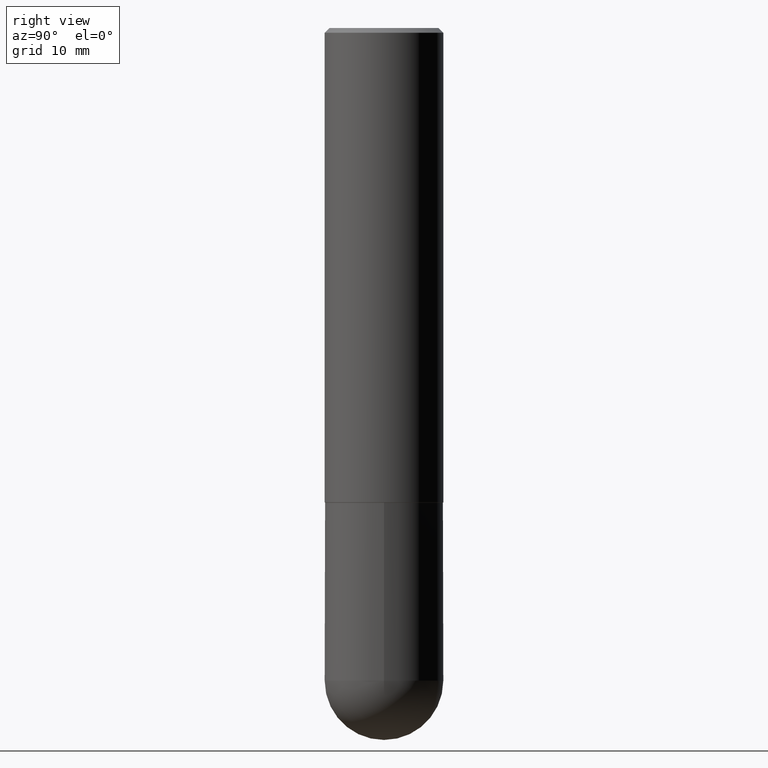
[diagram: clean part render]
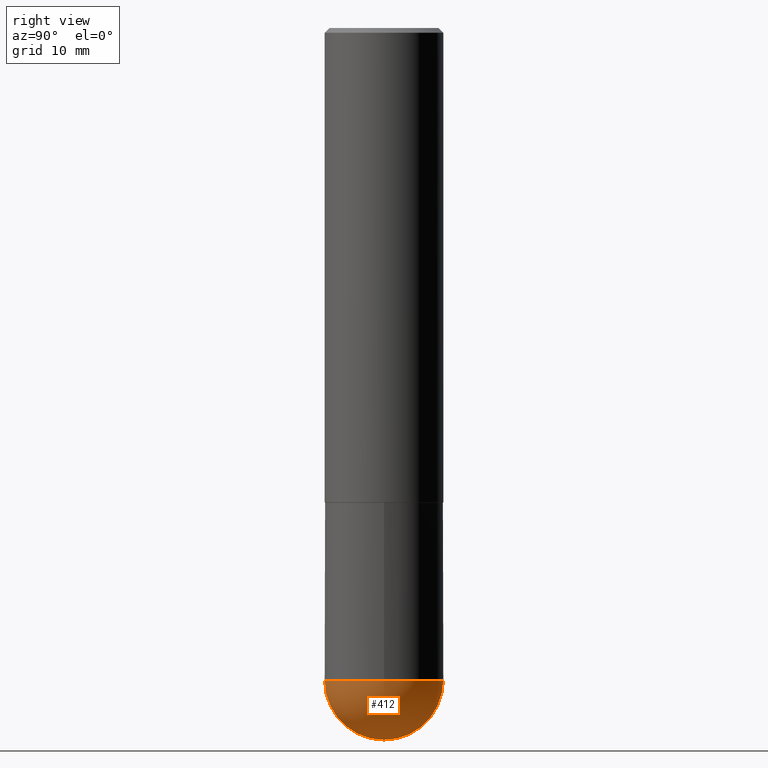
[diagram: same view with one face highlighted and labeled with its STEP entity id]
A machine part, right view. The second image highlights one B-rep face of the part: STEP entity #412.
In plain terms, the highlighted spherical surface has radius 6.35 mm.
Its self-contained STEP definition (entity closure, byte-faithful):
#14 = AXIS2_PLACEMENT_3D ( 'NONE', #236, #357, #362 ) ;
#37 = CARTESIAN_POINT ( 'NONE',  ( -1.776356839400184989E-15, -0.2500000000000098810, -2.749999999999999556 ) ) ;
#60 = CARTESIAN_POINT ( 'NONE',  ( 1.745740669421632745E-15, 0.2499999999999902300, -2.750000000000001332 ) ) ;
#73 = ORIENTED_EDGE ( 'NONE', *, *, #87, .F. ) ;
#82 = AXIS2_PLACEMENT_3D ( 'NONE', #363, #134, #266 ) ;
#87 = EDGE_CURVE ( 'NONE', #389, #170, #205, .T. ) ;
#94 = CARTESIAN_POINT ( 'NONE',  ( 0.2500000000000000000, -1.003800884917404153E-14, -2.750000000000000444 ) ) ;
#114 = ORIENTED_EDGE ( 'NONE', *, *, #386, .T. ) ;
#123 = DIRECTION ( 'NONE',  ( -1.000000000000000000, 7.105427357601001070E-15, -4.926315508542082329E-29 ) ) ;
#133 = CARTESIAN_POINT ( 'NONE',  ( 7.015976219256266741E-29, -1.093331829968014633E-14, -3.000000000000000888 ) ) ;
#134 = DIRECTION ( 'NONE',  ( -2.445468806185136597E-29, 3.491481338843145583E-15, 1.000000000000000000 ) ) ;
#170 = VERTEX_POINT ( 'NONE', #37 ) ;
#171 = DIRECTION ( 'NONE',  ( 1.000000000000000000, -6.982962677686265922E-15, 4.883557194083112340E-29 ) ) ;
#173 = VERTEX_POINT ( 'NONE', #94 ) ;
#184 = VERTEX_POINT ( 'NONE', #60 ) ;
#195 = CIRCLE ( 'NONE', #328, 0.2500000000000001110 ) ;
#201 = EDGE_LOOP ( 'NONE', ( #73, #114, #316, #265 ) ) ;
#202 = CARTESIAN_POINT ( 'NONE',  ( 6.393919439095240515E-29, -1.007575604995870173E-14, -2.750000000000000444 ) ) ;
#205 = CIRCLE ( 'NONE', #322, 0.2500000000000001110 ) ;
#233 = FACE_OUTER_BOUND ( 'NONE', #201, .T. ) ;
#236 = CARTESIAN_POINT ( 'NONE',  ( 6.393919439095240515E-29, -1.007575604995870173E-14, -2.750000000000000444 ) ) ;
#264 = CARTESIAN_POINT ( 'NONE',  ( 6.725039217009125641E-29, -9.601573681818653015E-15, -2.750000000000000444 ) ) ;
#265 = ORIENTED_EDGE ( 'NONE', *, *, #299, .F. ) ;
#266 = DIRECTION ( 'NONE',  ( 1.000000000000000000, -6.982962677686270655E-15, 0.000000000000000000 ) ) ;
#297 = DIRECTION ( 'NONE',  ( -2.445468806185136597E-29, 3.491481338843145583E-15, 1.000000000000000000 ) ) ;
#299 = EDGE_CURVE ( 'NONE', #170, #173, #399, .T. ) ;
#305 = EDGE_CURVE ( 'NONE', #173, #184, #370, .T. ) ;
#316 = ORIENTED_EDGE ( 'NONE', *, *, #305, .F. ) ;
#322 = AXIS2_PLACEMENT_3D ( 'NONE', #372, #123, #376 ) ;
#328 = AXIS2_PLACEMENT_3D ( 'NONE', #202, #171, #391 ) ;
#331 = SPHERICAL_SURFACE ( 'NONE', #14, 0.2500000000000001110 ) ;
#341 = AXIS2_PLACEMENT_3D ( 'NONE', #264, #297, #396 ) ;
#357 = DIRECTION ( 'NONE',  ( -1.000000000000000000, 6.982962677686265922E-15, -4.883557194083113462E-29 ) ) ;
#362 = DIRECTION ( 'NONE',  ( 6.982962677686265922E-15, 1.000000000000000000, -4.370956789862818783E-15 ) ) ;
#363 = CARTESIAN_POINT ( 'NONE',  ( 6.725039217009125641E-29, -9.601573681818653015E-15, -2.750000000000000444 ) ) ;
#370 = CIRCLE ( 'NONE', #82, 0.2500000000000000000 ) ;
#372 = CARTESIAN_POINT ( 'NONE',  ( 6.393919439095240515E-29, -1.007575604995870173E-14, -2.750000000000000444 ) ) ;
#376 = DIRECTION ( 'NONE',  ( -7.105427357601001859E-15, -1.000000000000000000, 0.000000000000000000 ) ) ;
#386 = EDGE_CURVE ( 'NONE', #389, #184, #195, .T. ) ;
#389 = VERTEX_POINT ( 'NONE', #133 ) ;
#391 = DIRECTION ( 'NONE',  ( 6.982962677686266711E-15, 1.000000000000000000, 0.000000000000000000 ) ) ;
#396 = DIRECTION ( 'NONE',  ( 1.000000000000000000, -6.982962677686270655E-15, 0.000000000000000000 ) ) ;
#399 = CIRCLE ( 'NONE', #341, 0.2500000000000000000 ) ;
#412 = ADVANCED_FACE ( 'NONE', ( #233 ), #331, .T. ) ;